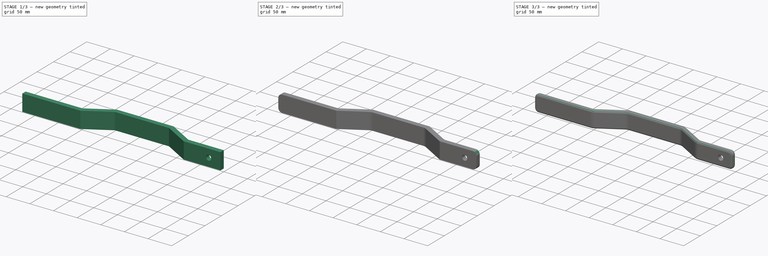
[diagram: build sequence overview — one tinted view per stage of 3, left to right]
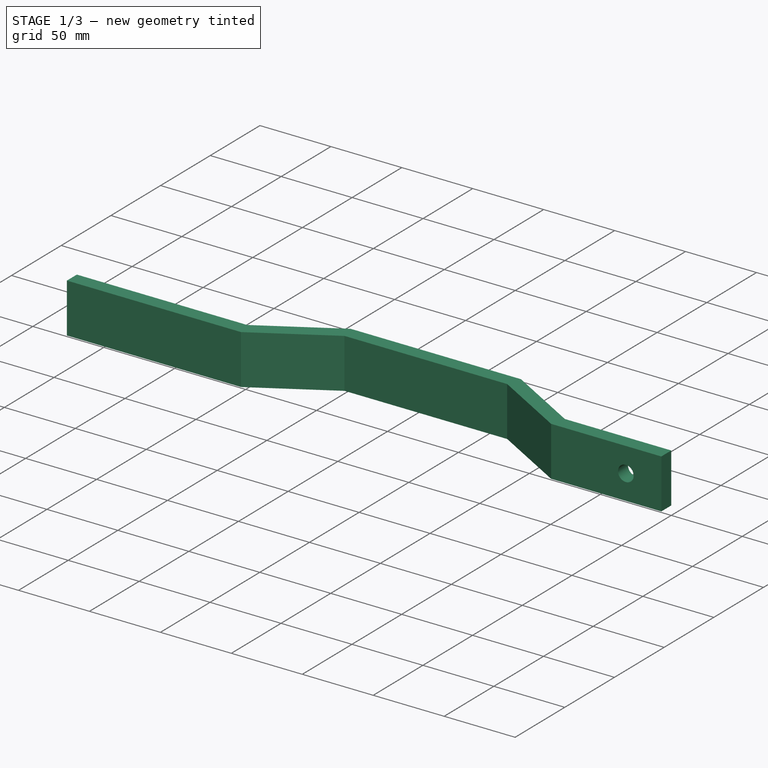
[diagram: stage 1 of 3 — iso view after this stage's code; geometry added in this stage tinted green]
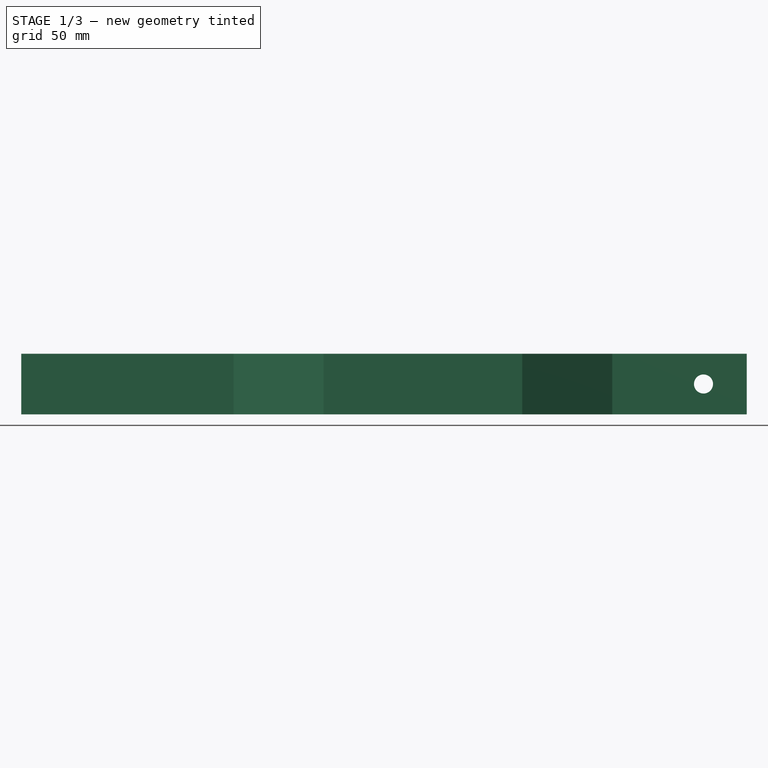
[diagram: stage 1 of 3 — front view after this stage's code; geometry added in this stage tinted green]
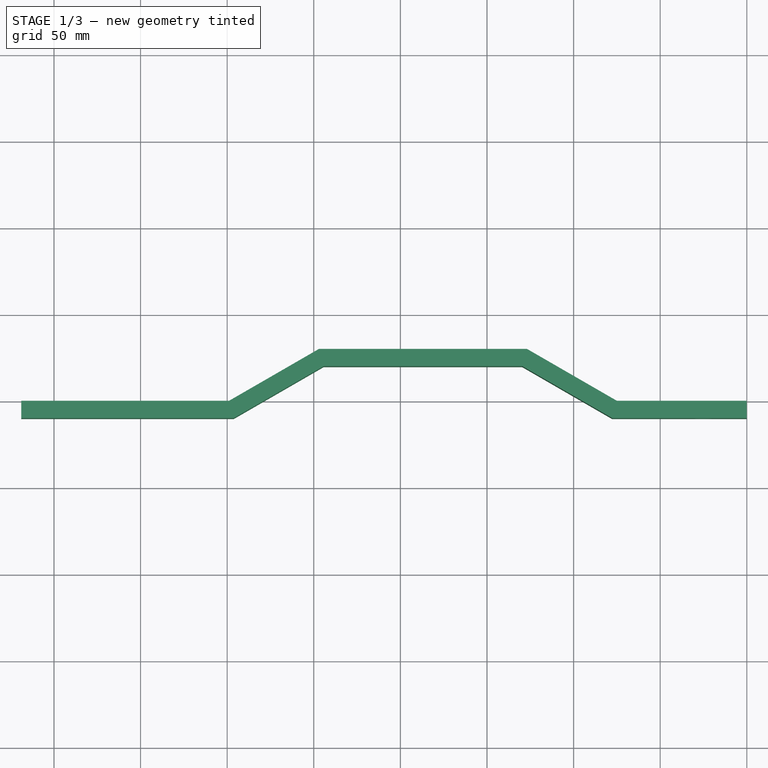
[diagram: stage 1 of 3 — top view after this stage's code; geometry added in this stage tinted green]
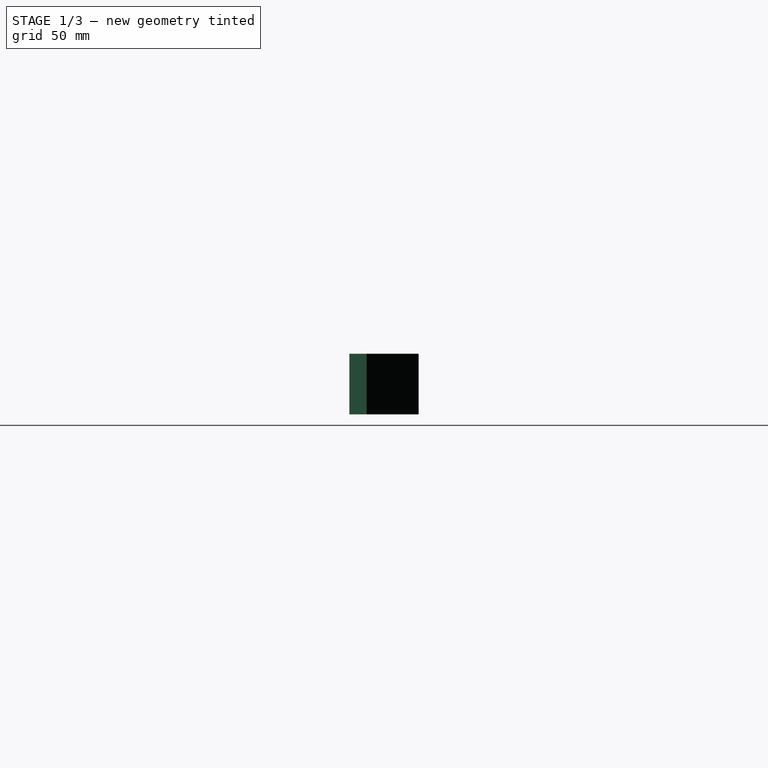
[diagram: stage 1 of 3 — right view after this stage's code; geometry added in this stage tinted green]
FCSTD DOCUMENT  (FreeCAD 0.18R4 (GitTag))
Label: door-lever
License: All rights reserved
LicenseURL: http://en.wikipedia.org/wiki/All_rights_reserved
objects: PartDesign::Fillet×4, Sketcher::SketchObject×2, PartDesign::Pad×1, PartDesign::Pocket×1, PartDesign::Body×1
note: 11 computed .brp shape members not serialized (recipe doc carries the construction recipe); baked Part::Feature solids carry a one-line shape summary decoded from their .brp

FEATURE [Sketcher::SketchObject] Sketch
  MapMode = 5
  Support = -> [XY_Plane]
  sketch-geometry (12):
    g0: LineSegment StartX=0 StartY=0 StartZ=0 EndX=-75 EndY=0 EndZ=0
    g1: LineSegment StartX=-75 StartY=0 StartZ=0 EndX=-126.962 EndY=30 EndZ=0
    g2: LineSegment StartX=-126.962 StartY=30 StartZ=0 EndX=-246.962 EndY=30 EndZ=0
    g3: LineSegment StartX=-246.962 StartY=30 StartZ=0 EndX=-298.923 EndY=0 EndZ=0
    g4: LineSegment StartX=-298.923 StartY=0 StartZ=0 EndX=-418.923 EndY=0 EndZ=0
    g5: LineSegment StartX=-418.923 StartY=0 StartZ=0 EndX=-418.923 EndY=-10 EndZ=0
    g6: LineSegment StartX=-418.923 StartY=-10 StartZ=0 EndX=-296.244 EndY=-10 EndZ=0
    g7: LineSegment StartX=-296.244 StartY=-10 StartZ=0 EndX=-244.282 EndY=20 EndZ=0
    g8: LineSegment StartX=-244.282 StartY=20 StartZ=0 EndX=-129.641 EndY=20 EndZ=0
    g9: LineSegment StartX=-129.641 StartY=20 StartZ=0 EndX=-77.6795 EndY=-10 EndZ=0
    g10: LineSegment StartX=-77.6795 StartY=-10 StartZ=0 EndX=0 EndY=-10 EndZ=0
    g11: LineSegment StartX=0 StartY=0 StartZ=0 EndX=0 EndY=-10 EndZ=0
  constraints (35):
    c: Coincident(g0,g-1)
    c: PointOnObject(g0,g-1)
    c: Coincident(g1,g0)
    c: Coincident(g2,g1)
    c: Horizontal(g2)
    c: Coincident(g3,g2)
    c: PointOnObject(g3,g-1)
    c: Coincident(g4,g3)
    c: Horizontal(g4)
    c: Coincident(g5,g4)
    c: Coincident(g6,g5)
    c: Horizontal(g6)
    c: Coincident(g7,g6)
    c: Coincident(g8,g7)
    c: Horizontal(g8)
    c: Coincident(g9,g8)
    c: Coincident(g10,g9)
    c: PointOnObject(g10,g-2)
    c: Horizontal(g10)
    c: Coincident(g11,g0)
    c: Coincident(g11,g10)
    c: DistanceY(g11,g11) = 10
    c: DistanceY(g5,g5) = 10
    c: DistanceY(g7,g2) = 10
    c: Distance(g8,g1) = 10
    c: Distance(g3,g7) = 10
    c: Parallel(g1,g9)
    c: Parallel(g3,g7)
    c: DistanceY(g3,g2) = 30
    c: DistanceX(g4,g4) = 120
    c: Vertical(g5)
    c: Distance(g3) = 60
    c: DistanceX(g2,g2) = 120
    c: Distance(g1) = 60
    c: DistanceX(g0,g0) = 75
FEATURE [PartDesign::Pad] Pad
  Length = 35
  Length2 = 100
  Profile = -> Sketch
  Refine = true
  Type = 0
FEATURE [Sketcher::SketchObject] Sketch001
  MapMode = 5
  Placement = pos=(0,0,0) rot=(0,0.707107,0.707107;3.14159rad)
  Support = -> [Pad]
  sketch-geometry (1):
    g0: Circle CenterX=25 CenterY=17.5 CenterZ=0 NormalX=0 NormalY=0 NormalZ=1 AngleXU=0 Radius=5.5
  constraints (3):
    c: Radius(g0) = 5.5
    c: DistanceX(g-1,g0) = 25
    c: DistanceY(g-1,g0) = 17.5
FEATURE [PartDesign::Pocket] Pocket
  BaseFeature = -> Pad
  Length = 5
  Length2 = 100
  Profile = -> Sketch001
  Refine = true
  Type = 1
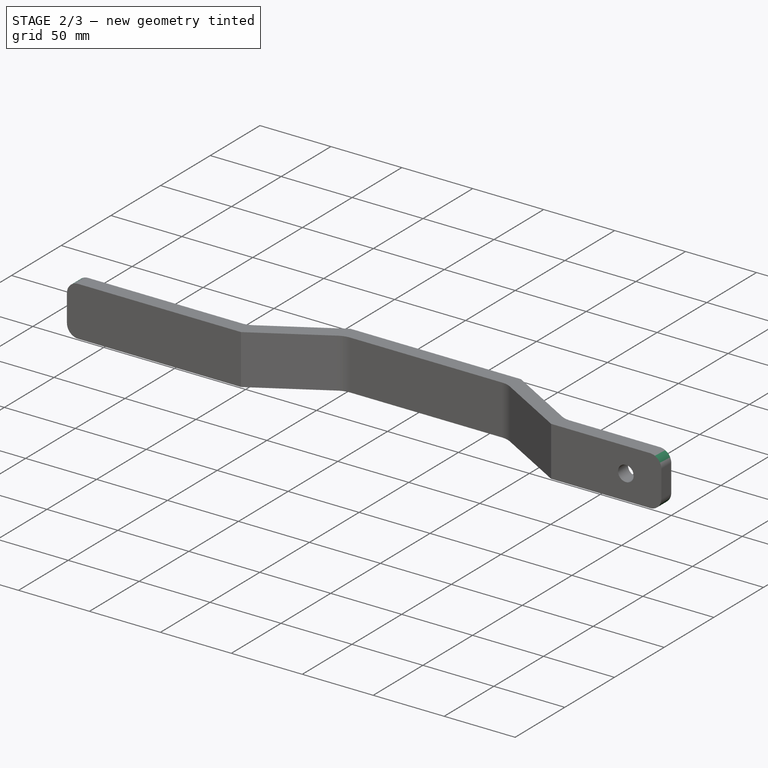
[diagram: stage 2 of 3 — iso view after this stage's code; geometry added in this stage tinted green]
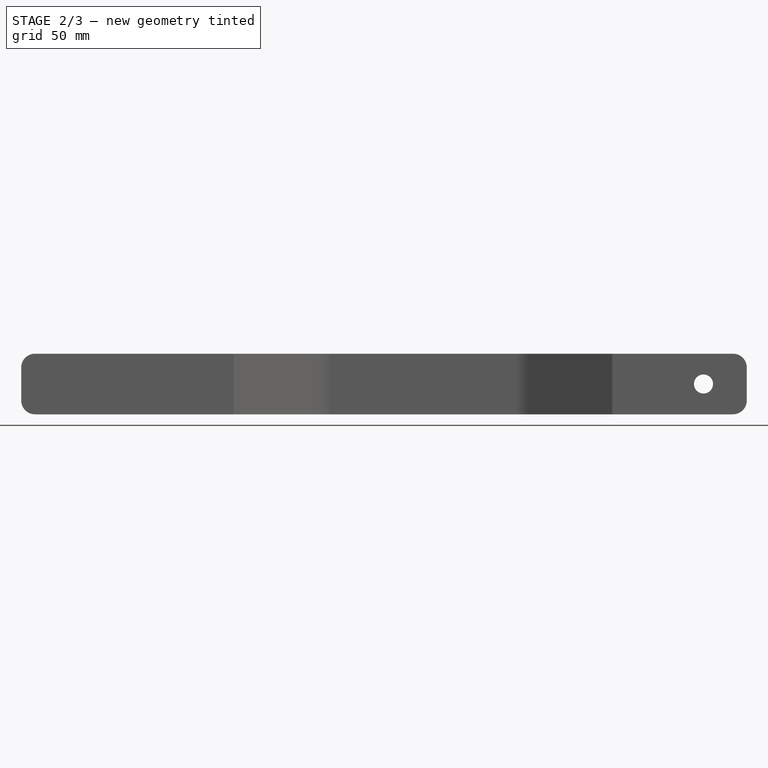
[diagram: stage 2 of 3 — front view after this stage's code; geometry added in this stage tinted green]
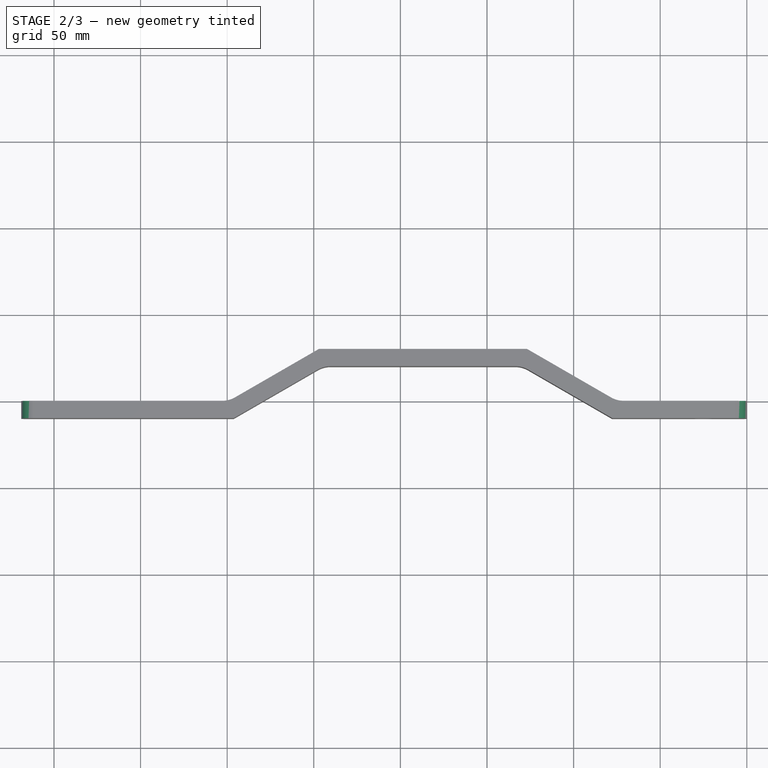
[diagram: stage 2 of 3 — top view after this stage's code; geometry added in this stage tinted green]
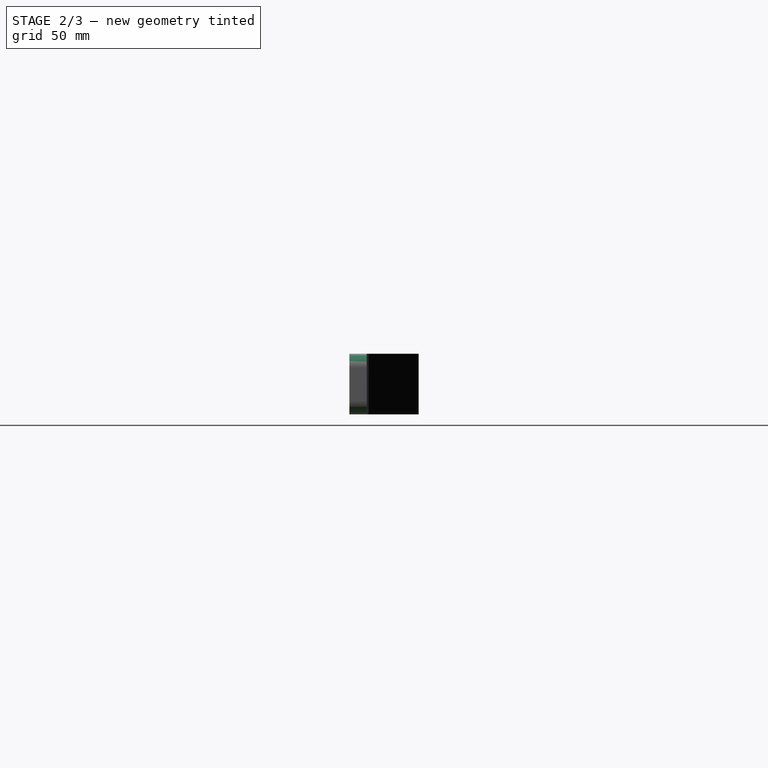
[diagram: stage 2 of 3 — right view after this stage's code; geometry added in this stage tinted green]
FEATURE [PartDesign::Fillet] Fillet
  Base = -> Pocket [Edge8,Edge7,Edge23,Edge13]
  BaseFeature = -> Pocket
  Radius = 8
FEATURE [PartDesign::Fillet] Fillet001
  Base = -> Fillet [Edge41,Edge42,Edge40,Edge6]
  BaseFeature = -> Fillet
  Radius = 15
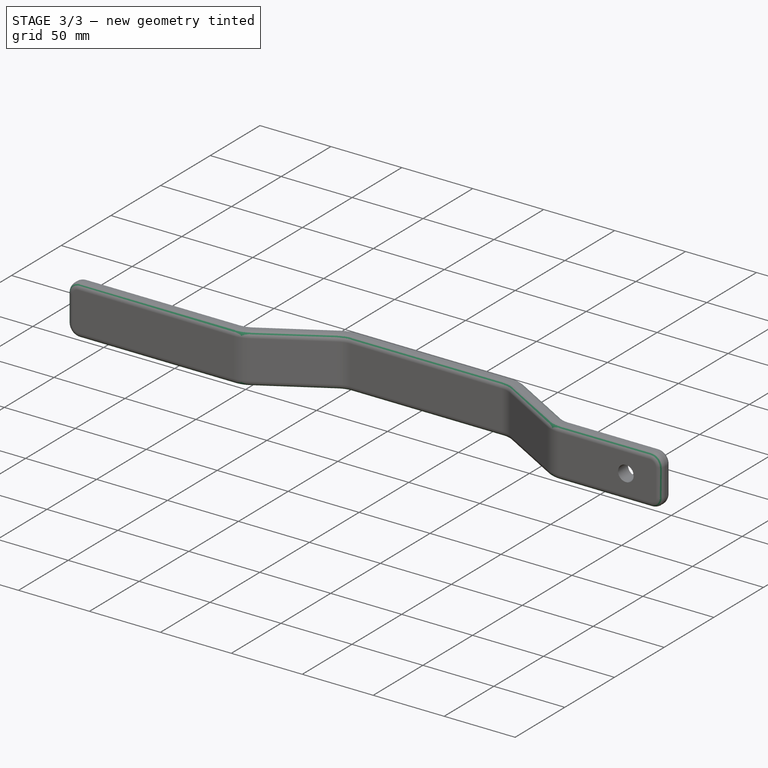
[diagram: stage 3 of 3 — iso view after this stage's code; geometry added in this stage tinted green]
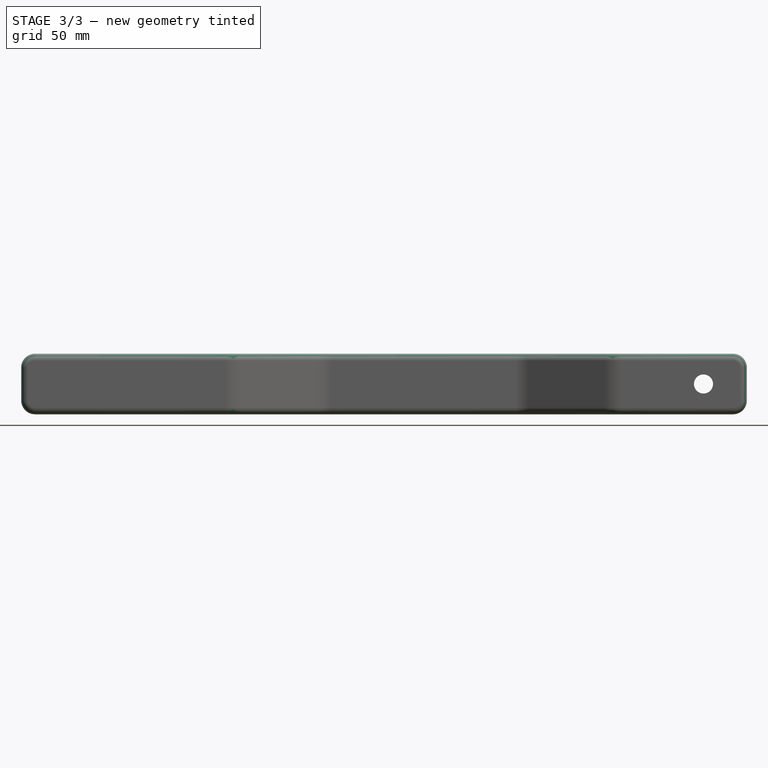
[diagram: stage 3 of 3 — front view after this stage's code; geometry added in this stage tinted green]
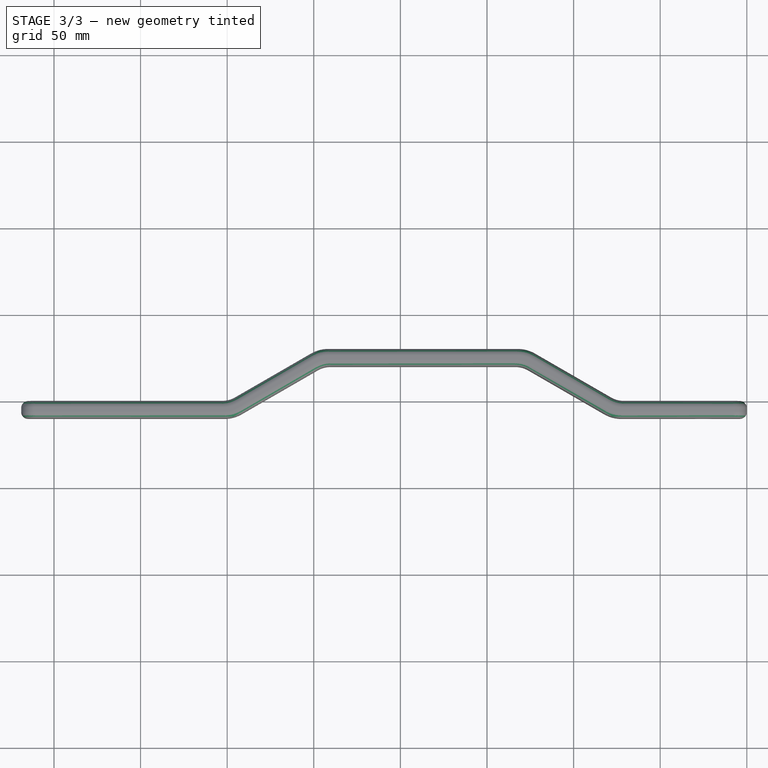
[diagram: stage 3 of 3 — top view after this stage's code; geometry added in this stage tinted green]
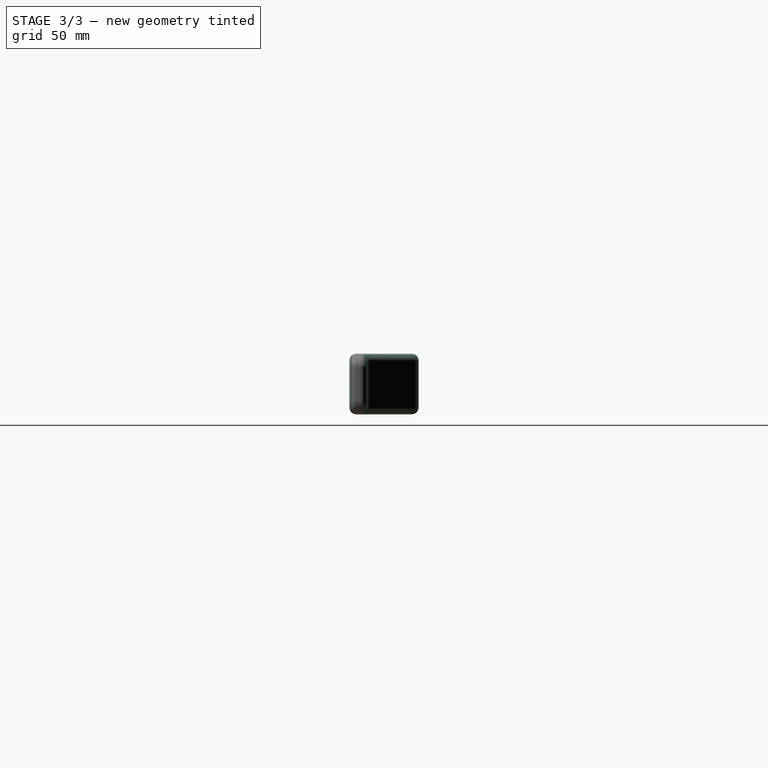
[diagram: stage 3 of 3 — right view after this stage's code; geometry added in this stage tinted green]
FEATURE [PartDesign::Fillet] Fillet002
  Base = -> Fillet001 [Edge46,Edge48,Edge60,Edge47]
  BaseFeature = -> Fillet001
  Radius = 20
FEATURE [PartDesign::Fillet] Fillet003
  Base = -> Fillet002 [Edge51,Edge53,Edge52,Edge50,Edge12,Edge10,Edge47,Edge40,Edge8,Edge6,Edge36,Edge29,Edge4,Edge2,Edge25,Edge23,Edge1,Edge3,Edge27,Edge31,Edge33,Edge32,Edge30,Edge5,Edge44,Edge43,Edge42,Edge49,Edge55,Edge59,Edge65,Edge69,Edge70,Edge67,Edge61,Edge63,Edge38,Edge9,Edge11,Edge13,+8 more]
  BaseFeature = -> Fillet002
  Radius = 4
FEATURE [PartDesign::Body] Body
  Group = -> [Sketch,Pad,Sketch001,Pocket,Fillet,Fillet001,Fillet002,Fillet003]
  Origin = -> Origin
  Tip = -> Fillet003
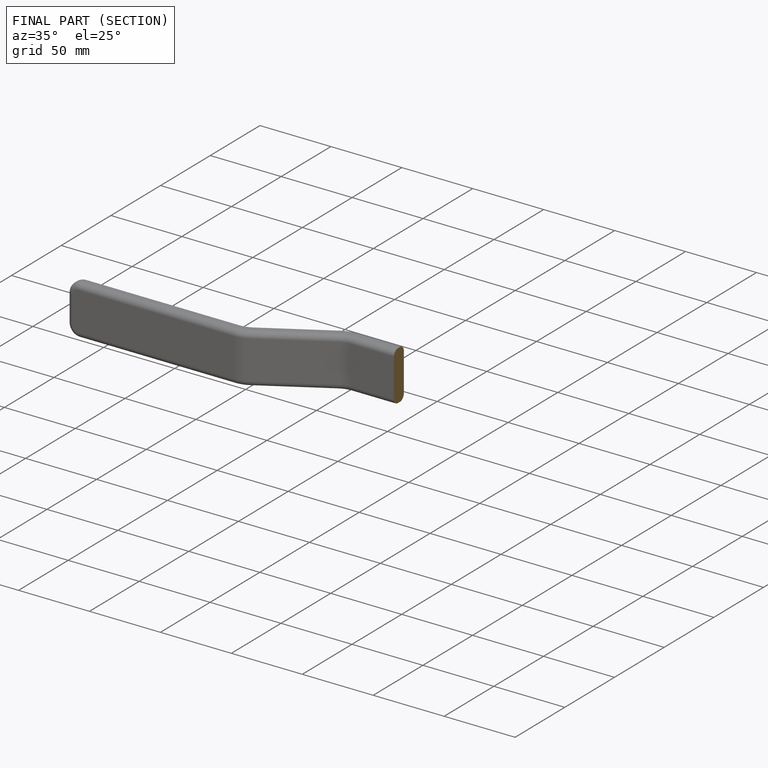
[diagram: finished part — half-section view (interior)]
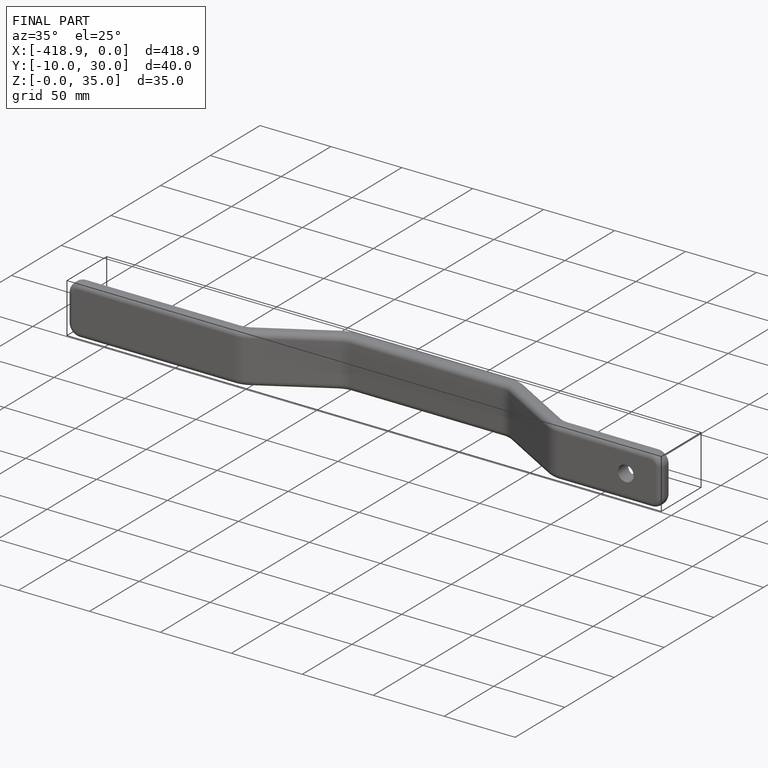
[diagram: finished part — iso view with bounding-box wireframe]
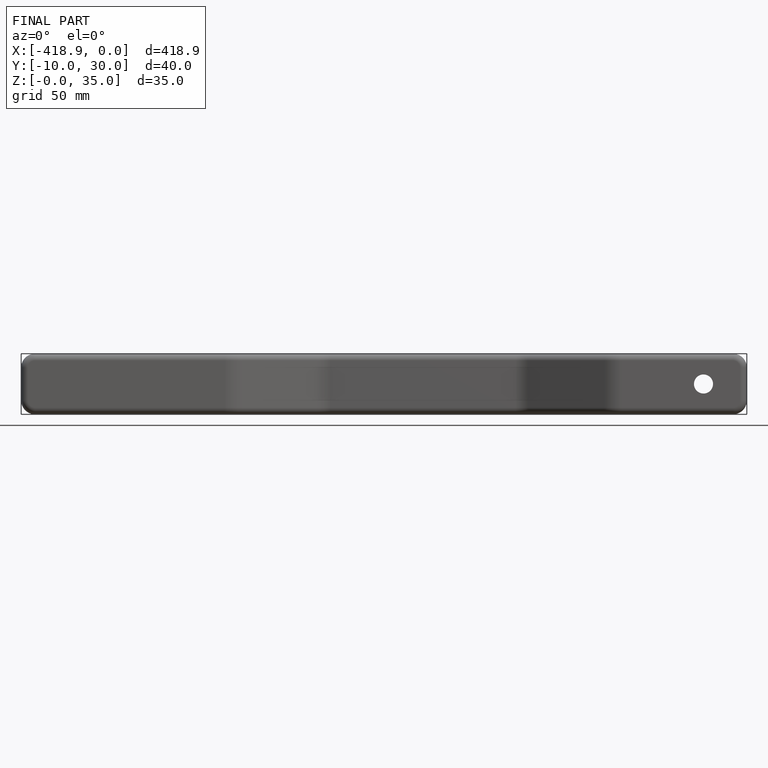
[diagram: finished part — front view with bounding-box wireframe]
